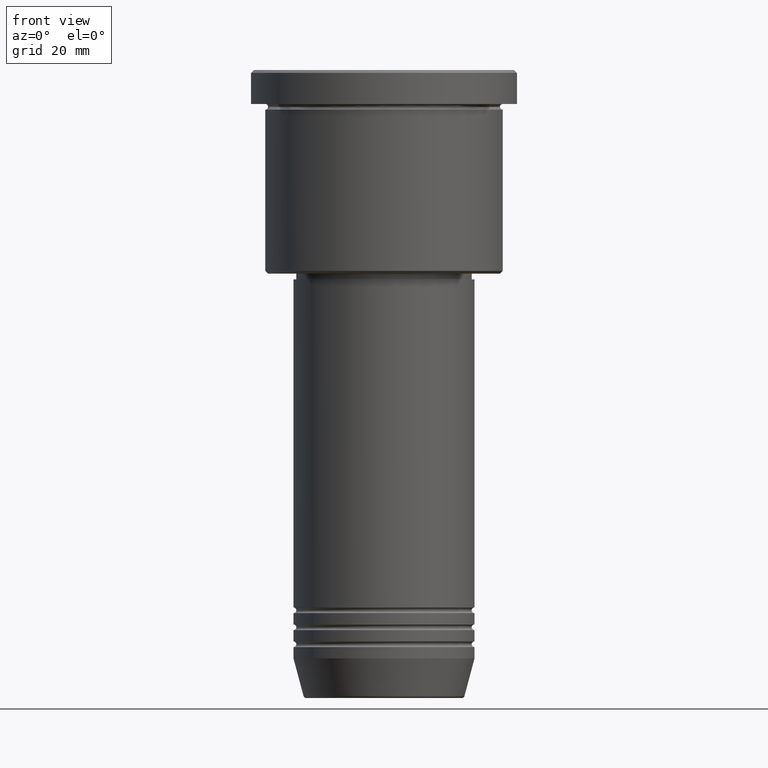
[diagram: clean part render]
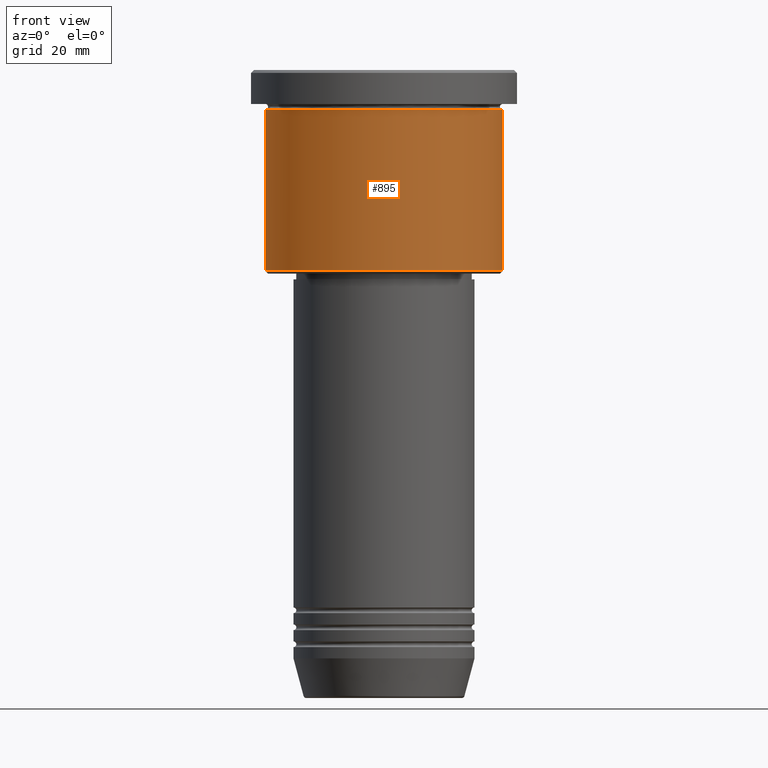
[diagram: same view with one face highlighted and labeled with its STEP entity id]
A machine part, front view. The second image highlights one B-rep face of the part: STEP entity #895.
In plain terms, the highlighted cylindrical surface (partial cylindrical patch) has radius 21 mm, axis along (-0, -0, 1).
Its self-contained STEP definition (entity closure, byte-faithful):
#49 = CARTESIAN_POINT ( 'NONE',  ( -21.00000000000000000, 2.571758278209441661E-15, -35.50000000000001421 ) ) ;
#59 = AXIS2_PLACEMENT_3D ( 'NONE', #1117, #286, #663 ) ;
#81 = LINE ( 'NONE', #977, #983 ) ;
#121 = CARTESIAN_POINT ( 'NONE',  ( 21.00000000000000000, 0.000000000000000000, 0.000000000000000000 ) ) ;
#131 = CIRCLE ( 'NONE', #563, 21.00000000000000000 ) ;
#244 = CARTESIAN_POINT ( 'NONE',  ( 0.000000000000000000, 0.000000000000000000, 0.000000000000000000 ) ) ;
#286 = DIRECTION ( 'NONE',  ( -0.000000000000000000, -0.000000000000000000, 1.000000000000000000 ) ) ;
#289 = VERTEX_POINT ( 'NONE', #376 ) ;
#320 = EDGE_CURVE ( 'NONE', #1099, #974, #81, .T. ) ;
#334 = FACE_OUTER_BOUND ( 'NONE', #713, .T. ) ;
#364 = VERTEX_POINT ( 'NONE', #1110 ) ;
#376 = CARTESIAN_POINT ( 'NONE',  ( 21.00000000000000000, 0.000000000000000000, -35.50000000000001421 ) ) ;
#425 = CIRCLE ( 'NONE', #59, 21.00000000000000000 ) ;
#454 = DIRECTION ( 'NONE',  ( -0.000000000000000000, -0.000000000000000000, 1.000000000000000000 ) ) ;
#481 = CARTESIAN_POINT ( 'NONE',  ( 0.000000000000000000, 0.000000000000000000, -6.999999999999994671 ) ) ;
#519 = DIRECTION ( 'NONE',  ( -0.000000000000000000, -0.000000000000000000, 1.000000000000000000 ) ) ;
#531 = DIRECTION ( 'NONE',  ( -0.000000000000000000, -0.000000000000000000, 1.000000000000000000 ) ) ;
#558 = DIRECTION ( 'NONE',  ( -0.000000000000000000, -0.000000000000000000, 1.000000000000000000 ) ) ;
#563 = AXIS2_PLACEMENT_3D ( 'NONE', #481, #558, #1031 ) ;
#658 = AXIS2_PLACEMENT_3D ( 'NONE', #244, #531, #710 ) ;
#663 = DIRECTION ( 'NONE',  ( -1.000000000000000000, 0.000000000000000000, 0.000000000000000000 ) ) ;
#667 = CARTESIAN_POINT ( 'NONE',  ( -21.00000000000000000, 2.571758278209441661E-15, -6.999999999999994671 ) ) ;
#710 = DIRECTION ( 'NONE',  ( 1.000000000000000000, 0.000000000000000000, 0.000000000000000000 ) ) ;
#713 = EDGE_LOOP ( 'NONE', ( #792, #1063, #947, #1108 ) ) ;
#775 = LINE ( 'NONE', #121, #1097 ) ;
#786 = EDGE_CURVE ( 'NONE', #1099, #289, #425, .T. ) ;
#792 = ORIENTED_EDGE ( 'NONE', *, *, #320, .F. ) ;
#807 = CYLINDRICAL_SURFACE ( 'NONE', #658, 21.00000000000000000 ) ;
#895 = ADVANCED_FACE ( 'NONE', ( #334 ), #807, .T. ) ;
#947 = ORIENTED_EDGE ( 'NONE', *, *, #1107, .T. ) ;
#973 = EDGE_CURVE ( 'NONE', #974, #364, #131, .T. ) ;
#974 = VERTEX_POINT ( 'NONE', #667 ) ;
#977 = CARTESIAN_POINT ( 'NONE',  ( -21.00000000000000000, 2.571758278209441661E-15, 0.000000000000000000 ) ) ;
#983 = VECTOR ( 'NONE', #454, 1000.000000000000000 ) ;
#1031 = DIRECTION ( 'NONE',  ( 1.000000000000000000, 0.000000000000000000, 0.000000000000000000 ) ) ;
#1063 = ORIENTED_EDGE ( 'NONE', *, *, #786, .T. ) ;
#1097 = VECTOR ( 'NONE', #519, 1000.000000000000000 ) ;
#1099 = VERTEX_POINT ( 'NONE', #49 ) ;
#1107 = EDGE_CURVE ( 'NONE', #289, #364, #775, .T. ) ;
#1108 = ORIENTED_EDGE ( 'NONE', *, *, #973, .F. ) ;
#1110 = CARTESIAN_POINT ( 'NONE',  ( 21.00000000000000000, 0.000000000000000000, -6.999999999999994671 ) ) ;
#1117 = CARTESIAN_POINT ( 'NONE',  ( 0.000000000000000000, 0.000000000000000000, -35.50000000000001421 ) ) ;